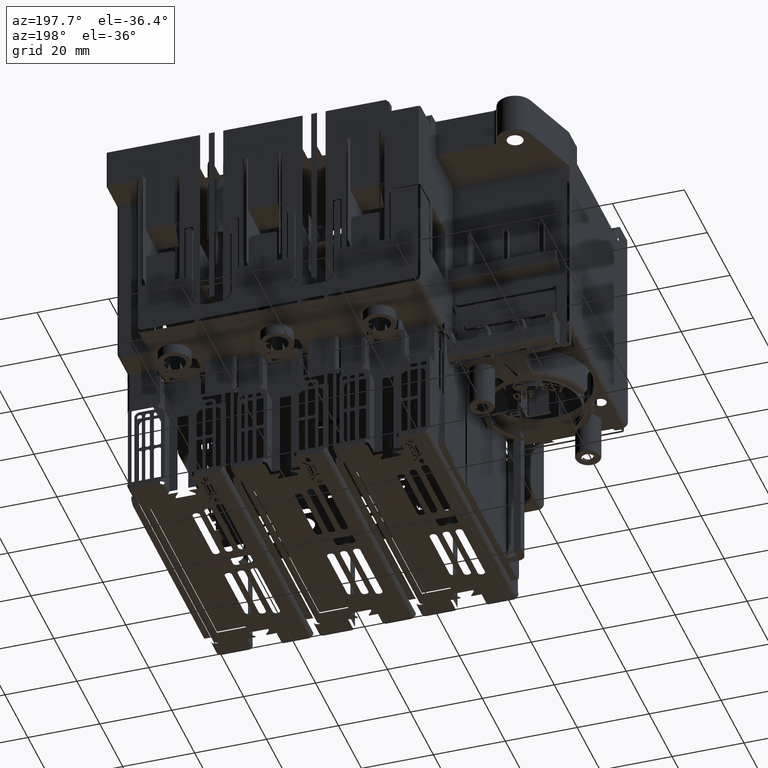
[diagram: clean part render]
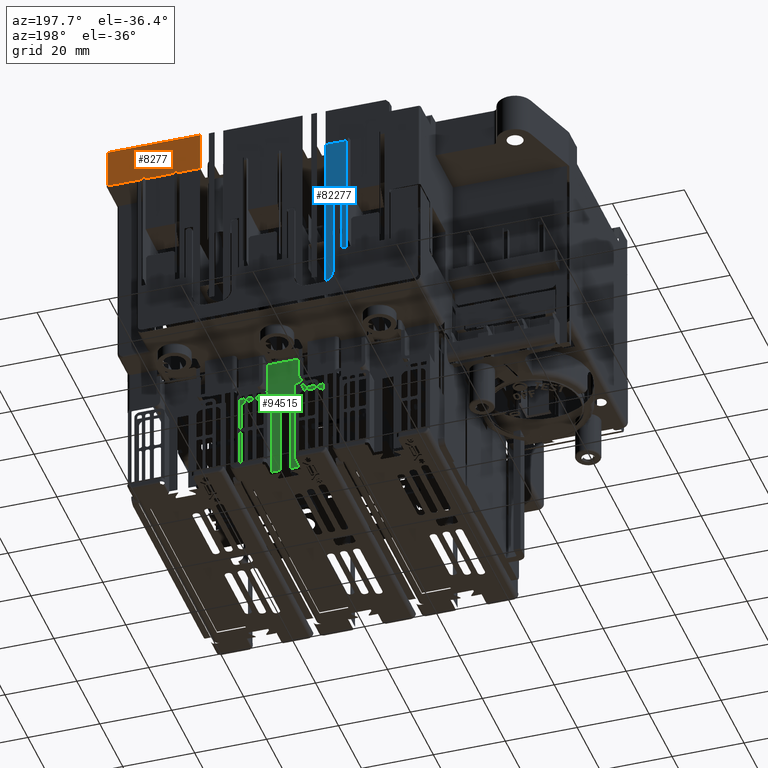
[diagram: same view with three faces highlighted in distinct colors, each labeled with its STEP entity id]
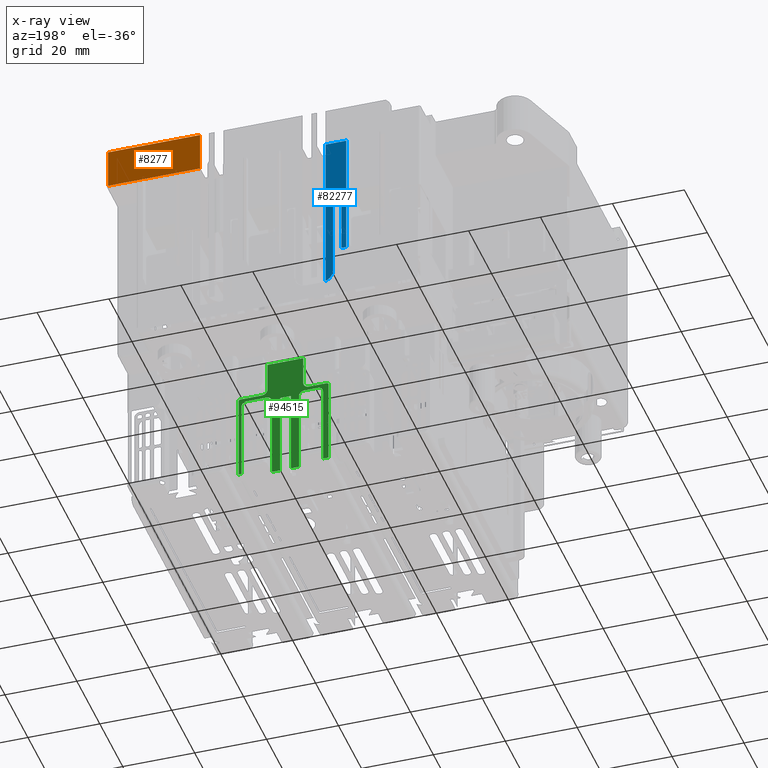
[diagram: x-ray of the same camera — body ghosted, the three highlighted faces saturated]
A machine part, auxiliary view with three faces highlighted in distinct colors.
The next image is the same camera in x-ray (body ghosted, the three faces saturated) — at least one of them is partly hidden behind the body in this view.
Their STEP definitions:

[orange] entity #8277 — the highlighted planar face has unit normal (0, 1, 0).
#1270=CARTESIAN_POINT('',(2.029893479755E2,4.687562894040E2,-2.550392864144E1));
#3011=DIRECTION('',(-1.E0,0.E0,0.E0));
#3012=VECTOR('',#3011,2.561392773700E1);
#3013=CARTESIAN_POINT('',(2.029893479755E2,4.687562894040E2,-1.450392864144E1));
#3014=LINE('',#3013,#3012);
#3015=DIRECTION('',(-1.188947499981E-5,0.E0,-9.999999999293E-1));
#3016=VECTOR('',#3015,1.100000000078E1);
#3017=CARTESIAN_POINT('',(1.773754202385E2,4.687562894040E2,-1.450392864144E1));
#3018=LINE('',#3017,#3016);
#3019=DIRECTION('',(1.E0,0.E0,0.E0));
#3020=VECTOR('',#3019,2.561405852123E1);
#3021=CARTESIAN_POINT('',(1.773752894543E2,4.687562894040E2,-2.550392864144E1));
#3022=LINE('',#3021,#3020);
#3023=DIRECTION('',(-2.402926342752E-13,0.E0,-1.E0));
#3024=VECTOR('',#3023,1.1E1);
#3025=CARTESIAN_POINT('',(2.029893479755E2,4.687562894040E2,-1.450392864144E1));
#3026=LINE('',#3025,#3024);
#5511=CARTESIAN_POINT('',(1.773752894543E2,4.687562894040E2,-2.550392864144E1));
#5513=VERTEX_POINT('',#5511);
#5844=CARTESIAN_POINT('',(1.773754202385E2,4.687562894040E2,-1.450392864144E1));
#5845=VERTEX_POINT('',#5844);
#6306=VERTEX_POINT('',#1270);
#6389=CARTESIAN_POINT('',(2.029893479755E2,4.687562894040E2,-1.450392864144E1));
#6391=VERTEX_POINT('',#6389);
#8264=CARTESIAN_POINT('',(1.901823036244E2,4.687562894040E2,-2.000392864144E1));
#8265=DIRECTION('',(0.E0,1.E0,0.E0));
#8266=DIRECTION('',(-1.E0,0.E0,0.E0));
#8267=AXIS2_PLACEMENT_3D('',#8264,#8265,#8266);
#8268=PLANE('',#8267);
#8270=ORIENTED_EDGE('',*,*,#8269,.F.);
#8271=ORIENTED_EDGE('',*,*,#7542,.T.);
#8273=ORIENTED_EDGE('',*,*,#8272,.T.);
#8274=ORIENTED_EDGE('',*,*,#6937,.T.);
#8275=EDGE_LOOP('',(#8270,#8271,#8273,#8274));
#8276=FACE_OUTER_BOUND('',#8275,.F.);
#8277=ADVANCED_FACE('',(#8276),#8268,.T.);
#6937=EDGE_CURVE('',#5513,#6306,#3022,.T.);
#7542=EDGE_CURVE('',#6391,#5845,#3014,.T.);
#8269=EDGE_CURVE('',#6391,#6306,#3026,.T.);
#8272=EDGE_CURVE('',#5845,#5513,#3018,.T.);

[blue] entity #82277 — the highlighted planar face has unit normal (0, 1, 0).
#82202=DIRECTION('',(0.E0,0.E0,-1.E0));
#82203=VECTOR('',#82202,3.500255343210E1);
#82204=CARTESIAN_POINT('',(1.367520832988E2,4.687713708287E2,
-2.550392386379E1));
#82205=LINE('',#82204,#82203);
#82206=DIRECTION('',(1.E0,0.E0,-1.553414213631E-14));
#82207=VECTOR('',#82206,1.372221387300E0);
#82208=CARTESIAN_POINT('',(1.367520832988E2,4.687713708287E2,
-6.050647729589E1));
#82209=LINE('',#82208,#82207);
#82210=DIRECTION('',(0.E0,0.E0,1.E0));
#82211=VECTOR('',#82210,1.619559352612E1);
#82212=CARTESIAN_POINT('',(1.381243046861E2,4.687713708287E2,
-6.050647729589E1));
#82213=LINE('',#82212,#82211);
#82214=DIRECTION('',(1.E0,0.E0,0.E0));
#82215=VECTOR('',#82214,2.316443917200E0);
#82216=CARTESIAN_POINT('',(1.381243046861E2,4.687713708287E2,
-4.431088376977E1));
#82217=LINE('',#82216,#82215);
#82218=DIRECTION('',(0.E0,0.E0,-1.E0));
#82219=VECTOR('',#82218,2.319890732171E1);
#82220=CARTESIAN_POINT('',(1.404407486033E2,4.687713708287E2,
-4.431088376977E1));
#82221=LINE('',#82220,#82219);
#82222=CARTESIAN_POINT('',(1.404407486033E2,4.687713708287E2,
-6.750979109148E1));
#82223=CARTESIAN_POINT('',(1.404392561788E2,4.687713708287E2,
-6.775123863570E1));
#82224=CARTESIAN_POINT('',(1.404957722215E2,4.687713708287E2,
-6.822391820596E1));
#82225=CARTESIAN_POINT('',(1.407712104646E2,4.687713708287E2,
-6.894455672858E1));
#82226=CARTESIAN_POINT('',(1.412008283767E2,4.687713708287E2,
-6.955001725308E1));
#82227=CARTESIAN_POINT('',(1.417849622002E2,4.687713708287E2,
-7.004827500868E1));
#82228=CARTESIAN_POINT('',(1.422347375138E2,4.687713708287E2,
-7.026581864584E1));
#82229=CARTESIAN_POINT('',(1.424782681820E2,4.687713708287E2,
-7.034953005506E1));
#82231=DIRECTION('',(0.E0,0.E0,1.E0));
#82232=VECTOR('',#82231,4.484560619127E1);
#82233=CARTESIAN_POINT('',(1.424782681820E2,4.687713708287E2,
-7.034953005506E1));
#82234=LINE('',#82233,#82232);
#82235=DIRECTION('',(-1.E0,0.E0,0.E0));
#82236=VECTOR('',#82235,5.726184883200E0);
#82237=CARTESIAN_POINT('',(1.424782681820E2,4.687713708287E2,
-2.550392386379E1));
#82238=LINE('',#82237,#82236);
#82239=CARTESIAN_POINT('',(1.367520832988E2,4.687713708287E2,
-2.550392386379E1));
#82240=CARTESIAN_POINT('',(1.367520832988E2,4.687713708287E2,
-6.050647729589E1));
#82241=VERTEX_POINT('',#82239);
#82242=VERTEX_POINT('',#82240);
#82243=CARTESIAN_POINT('',(1.381243046861E2,4.687713708287E2,
-6.050647729589E1));
#82244=VERTEX_POINT('',#82243);
#82245=CARTESIAN_POINT('',(1.381243046861E2,4.687713708287E2,
-4.431088376977E1));
#82246=VERTEX_POINT('',#82245);
#82247=CARTESIAN_POINT('',(1.404407486033E2,4.687713708287E2,
-4.431088376977E1));
#82248=VERTEX_POINT('',#82247);
#82249=CARTESIAN_POINT('',(1.404407486033E2,4.687713708287E2,
-6.750979109148E1));
#82250=VERTEX_POINT('',#82249);
#82251=VERTEX_POINT('',#82229);
#82252=CARTESIAN_POINT('',(1.424782681820E2,4.687713708287E2,
-2.550392386379E1));
#82253=VERTEX_POINT('',#82252);
#82254=CARTESIAN_POINT('',(1.396151757404E2,4.687713708287E2,
-4.792672695943E1));
#82255=DIRECTION('',(0.E0,1.E0,0.E0));
#82256=DIRECTION('',(-1.E0,0.E0,0.E0));
#82257=AXIS2_PLACEMENT_3D('',#82254,#82255,#82256);
#82258=PLANE('',#82257);
#82260=ORIENTED_EDGE('',*,*,#82259,.T.);
#82262=ORIENTED_EDGE('',*,*,#82261,.T.);
#82264=ORIENTED_EDGE('',*,*,#82263,.T.);
#82266=ORIENTED_EDGE('',*,*,#82265,.T.);
#82268=ORIENTED_EDGE('',*,*,#82267,.T.);
#82270=ORIENTED_EDGE('',*,*,#82269,.T.);
#82272=ORIENTED_EDGE('',*,*,#82271,.T.);
#82274=ORIENTED_EDGE('',*,*,#82273,.T.);
#82275=EDGE_LOOP('',(#82260,#82262,#82264,#82266,#82268,#82270,#82272,#82274));
#82276=FACE_OUTER_BOUND('',#82275,.F.);
#82277=ADVANCED_FACE('',(#82276),#82258,.T.);
#82230=B_SPLINE_CURVE_WITH_KNOTS('',3,(#82222,#82223,#82224,#82225,#82226,
#82227,#82228,#82229),.UNSPECIFIED.,.F.,.F.,(4,1,1,1,1,4),(0.E0,2.E-1,4.E-1,
6.E-1,8.E-1,1.E0),.UNSPECIFIED.);
#82259=EDGE_CURVE('',#82241,#82242,#82205,.T.);
#82261=EDGE_CURVE('',#82242,#82244,#82209,.T.);
#82263=EDGE_CURVE('',#82244,#82246,#82213,.T.);
#82265=EDGE_CURVE('',#82246,#82248,#82217,.T.);
#82267=EDGE_CURVE('',#82248,#82250,#82221,.T.);
#82269=EDGE_CURVE('',#82250,#82251,#82230,.T.);
#82271=EDGE_CURVE('',#82251,#82253,#82234,.T.);
#82273=EDGE_CURVE('',#82253,#82241,#82238,.T.);

[green] entity #94515 — the highlighted planar face has unit normal (0, 1, 0).
#91076=DIRECTION('',(1.E0,0.E0,0.E0));
#91077=VECTOR('',#91076,2.293751345400E0);
#91078=CARTESIAN_POINT('',(1.615389434214E2,4.488766985529E2,
-1.145039558470E2));
#91079=LINE('',#91078,#91077);
#91080=CARTESIAN_POINT('',(1.653326947668E2,4.488766985529E2,
-9.120395584697E1));
#91081=DIRECTION('',(0.E0,1.E0,0.E0));
#91082=DIRECTION('',(-1.E0,0.E0,6.660153909858E-12));
#91083=AXIS2_PLACEMENT_3D('',#91080,#91081,#91082);
#91085=DIRECTION('',(1.E0,0.E0,1.296583774278E-12));
#91086=VECTOR('',#91085,5.414352985575E0);
#91087=CARTESIAN_POINT('',(1.653326947668E2,4.488766985529E2,
-8.970395584697E1));
#91088=LINE('',#91087,#91086);
#91089=CARTESIAN_POINT('',(1.707470477524E2,4.488766985529E2,
-8.970395584696E1));
#91090=CARTESIAN_POINT('',(1.709145068947E2,4.488766985529E2,
-8.970666315860E1));
#91091=CARTESIAN_POINT('',(1.712281088915E2,4.488766985529E2,
-8.975640116418E1));
#91092=CARTESIAN_POINT('',(1.716477005599E2,4.488766985529E2,
-8.997480201457E1));
#91093=CARTESIAN_POINT('',(1.719770682912E2,4.488766985529E2,
-9.030452562174E1));
#91094=CARTESIAN_POINT('',(1.721948295157E2,4.488766985529E2,
-9.072387805421E1));
#91095=CARTESIAN_POINT('',(1.722443980982E2,4.488766985529E2,
-9.103689393122E1));
#91096=CARTESIAN_POINT('',(1.722470477668E2,4.488766985529E2,
-9.120395584703E1));
#91098=DIRECTION('',(0.E0,0.E0,-1.E0));
#91099=VECTOR('',#91098,2.209999999997E1);
#91100=CARTESIAN_POINT('',(1.722470477668E2,4.488766985529E2,
-9.120395584703E1));
#91101=LINE('',#91100,#91099);
#91102=DIRECTION('',(1.E0,0.E0,0.E0));
#91103=VECTOR('',#91102,8.E-1);
#91104=CARTESIAN_POINT('',(1.722470477668E2,4.488766985529E2,
-1.133039558470E2));
#91105=LINE('',#91104,#91103);
#91106=DIRECTION('',(0.E0,0.E0,1.E0));
#91107=VECTOR('',#91106,2.410000000008E1);
#91108=CARTESIAN_POINT('',(1.730470477668E2,4.488766985529E2,
-1.133039558470E2));
#91109=LINE('',#91108,#91107);
#91110=CARTESIAN_POINT('',(1.730470477668E2,4.488766985529E2,
-8.920395584692E1));
#91111=CARTESIAN_POINT('',(1.730444792206E2,4.488766985529E2,
-8.913153843215E1));
#91112=CARTESIAN_POINT('',(1.730183203037E2,4.488766985529E2,
-8.900059238887E1));
#91113=CARTESIAN_POINT('',(1.729087748567E2,4.488766985529E2,
-8.884247089944E1));
#91114=CARTESIAN_POINT('',(1.727506471318E2,4.488766985529E2,
-8.873275333547E1));
#91115=CARTESIAN_POINT('',(1.726195650737E2,4.488766985529E2,
-8.870654687392E1));
#91116=CARTESIAN_POINT('',(1.725470477668E2,4.488766985529E2,
-8.870395584696E1));
#91118=DIRECTION('',(-1.E0,0.E0,-8.360719524250E-13));
#91119=VECTOR('',#91118,5.999999999900E0);
#91120=CARTESIAN_POINT('',(1.725470477668E2,4.488766985529E2,
-8.870395584696E1));
#91121=LINE('',#91120,#91119);
#91122=CARTESIAN_POINT('',(1.665470477669E2,4.488766985529E2,
-8.720395584697E1));
#91123=DIRECTION('',(0.E0,1.E0,0.E0));
#91124=DIRECTION('',(0.E0,0.E0,-1.E0));
#91125=AXIS2_PLACEMENT_3D('',#91122,#91123,#91124);
#91127=DIRECTION('',(-1.E0,0.E0,0.E0));
#91128=VECTOR('',#91127,1.E1);
#91129=CARTESIAN_POINT('',(1.650470477669E2,4.488766985529E2,
-7.900395584731E1));
#91130=LINE('',#91129,#91128);
#91131=CARTESIAN_POINT('',(1.535470477669E2,4.488766985529E2,
-8.720395584697E1));
#91132=DIRECTION('',(0.E0,1.E0,0.E0));
#91133=DIRECTION('',(1.E0,0.E0,-6.650680006715E-12));
#91134=AXIS2_PLACEMENT_3D('',#91131,#91132,#91133);
#91136=DIRECTION('',(-1.E0,0.E0,3.979039320153E-13));
#91137=VECTOR('',#91136,5.000000000130E0);
#91138=CARTESIAN_POINT('',(1.535470477669E2,4.488766985529E2,
-8.870395584697E1));
#91139=LINE('',#91138,#91137);
#91140=CARTESIAN_POINT('',(1.485470477668E2,4.488766985529E2,
-8.870395584697E1));
#91141=CARTESIAN_POINT('',(1.484746303520E2,4.488766985529E2,
-8.870652439318E1));
#91142=CARTESIAN_POINT('',(1.483436843086E2,4.488766985529E2,
-8.873268331017E1));
#91143=CARTESIAN_POINT('',(1.481855628191E2,4.488766985529E2,
-8.884222875717E1));
#91144=CARTESIAN_POINT('',(1.480758452552E2,4.488766985529E2,
-8.900035648215E1));
#91145=CARTESIAN_POINT('',(1.480496387937E2,4.488766985529E2,
-8.913143854012E1));
#91146=CARTESIAN_POINT('',(1.480470477668E2,4.488766985529E2,
-8.920395584699E1));
#91148=DIRECTION('',(0.E0,0.E0,-1.E0));
#91149=VECTOR('',#91148,2.410000000001E1);
#91150=CARTESIAN_POINT('',(1.480470477668E2,4.488766985529E2,
-8.920395584699E1));
#91151=LINE('',#91150,#91149);
#91152=DIRECTION('',(1.E0,0.E0,0.E0));
#91153=VECTOR('',#91152,1.500000000600E0);
#91154=CARTESIAN_POINT('',(1.480470477668E2,4.488766985529E2,
-1.133039558470E2));
#91155=LINE('',#91154,#91153);
#91156=DIRECTION('',(0.E0,0.E0,1.E0));
#91157=VECTOR('',#91156,2.210000000003E1);
#91158=CARTESIAN_POINT('',(1.495470477674E2,4.488766985529E2,
-1.133039558470E2));
#91159=LINE('',#91158,#91157);
#91160=CARTESIAN_POINT('',(1.495470477674E2,4.488766985529E2,
-9.120395584697E1));
#91161=CARTESIAN_POINT('',(1.495497550805E2,4.488766985529E2,
-9.103649670591E1));
#91162=CARTESIAN_POINT('',(1.495994930885E2,4.488766985529E2,
-9.072289471162E1));
#91163=CARTESIAN_POINT('',(1.498178939404E2,4.488766985529E2,
-9.030330304713E1));
#91164=CARTESIAN_POINT('',(1.501476175472E2,4.488766985529E2,
-8.997393531921E1));
#91165=CARTESIAN_POINT('',(1.505669699779E2,4.488766985529E2,
-8.975617409732E1));
#91166=CARTESIAN_POINT('',(1.508799858529E2,4.488766985529E2,
-8.970660551545E1));
#91167=CARTESIAN_POINT('',(1.510470477675E2,4.488766985529E2,
-8.970395584697E1));
#91169=DIRECTION('',(1.E0,0.E0,-2.024086605398E-12));
#91170=VECTOR('',#91169,3.699999997500E0);
#91171=CARTESIAN_POINT('',(1.510470477675E2,4.488766985529E2,
-8.970395584697E1));
#91172=LINE('',#91171,#91170);
#91173=CARTESIAN_POINT('',(1.547470477668E2,4.488766985529E2,
-9.120395584698E1));
#91174=DIRECTION('',(0.E0,1.E0,0.E0));
#91175=DIRECTION('',(-2.400042831141E-9,0.E0,1.E0));
#91176=AXIS2_PLACEMENT_3D('',#91173,#91174,#91175);
#91178=DIRECTION('',(1.E0,2.480192269846E-14,0.E0));
#91179=VECTOR('',#91178,2.291895654700E0);
#91180=CARTESIAN_POINT('',(1.562470477667E2,4.488766985529E2,
-1.145039558470E2));
#91181=LINE('',#91180,#91179);
#91182=DIRECTION('',(0.E0,0.E0,1.E0));
#91183=VECTOR('',#91182,2.380000000003E1);
#91184=CARTESIAN_POINT('',(1.585389434214E2,4.488766985529E2,
-1.145039558470E2));
#91185=LINE('',#91184,#91183);
#91186=DIRECTION('',(1.E0,0.E0,0.E0));
#91187=VECTOR('',#91186,3.E0);
#91188=CARTESIAN_POINT('',(1.585389434214E2,4.488766985529E2,
-9.070395584697E1));
#91189=LINE('',#91188,#91187);
#91190=DIRECTION('',(0.E0,0.E0,-1.E0));
#91191=VECTOR('',#91190,2.380000000003E1);
#91192=CARTESIAN_POINT('',(1.615389434214E2,4.488766985529E2,
-9.070395584697E1));
#91193=LINE('',#91192,#91191);
#91198=DIRECTION('',(0.E0,0.E0,-1.E0));
#91199=VECTOR('',#91198,2.330000000004E1);
#91200=CARTESIAN_POINT('',(1.638326947668E2,4.488766985529E2,
-9.120395584696E1));
#91201=LINE('',#91200,#91199);
#91891=DIRECTION('',(2.860468180812E-12,0.E0,1.E0));
#91892=VECTOR('',#91891,2.330000000048E1);
#91893=CARTESIAN_POINT('',(1.562470477667E2,4.488766985529E2,
-1.145039558470E2));
#91894=LINE('',#91893,#91892);
#93587=DIRECTION('',(1.629049199133E-13,0.E0,-1.E0));
#93588=VECTOR('',#93587,8.199999999632E0);
#93589=CARTESIAN_POINT('',(1.650470477669E2,4.488766985529E2,
-7.900395584731E1));
#93590=LINE('',#93589,#93588);
#93599=DIRECTION('',(0.E0,0.E0,1.E0));
#93600=VECTOR('',#93599,8.199999999667E0);
#93601=CARTESIAN_POINT('',(1.550470477669E2,4.488766985529E2,
-8.720395584698E1));
#93602=LINE('',#93601,#93600);
#93677=CARTESIAN_POINT('',(1.547470477650E2,4.488766985529E2,
-8.970395584698E1));
#93679=VERTEX_POINT('',#93677);
#93681=CARTESIAN_POINT('',(1.615389434214E2,4.488766985529E2,
-1.145039558470E2));
#93682=CARTESIAN_POINT('',(1.638326947668E2,4.488766985529E2,
-1.145039558470E2));
#93683=VERTEX_POINT('',#93681);
#93684=VERTEX_POINT('',#93682);
#93685=CARTESIAN_POINT('',(1.653326947668E2,4.488766985529E2,
-8.970395584697E1));
#93686=CARTESIAN_POINT('',(1.707470477524E2,4.488766985529E2,
-8.970395584696E1));
#93687=VERTEX_POINT('',#93685);
#93688=VERTEX_POINT('',#93686);
#93689=VERTEX_POINT('',#91096);
#93690=CARTESIAN_POINT('',(1.722470477668E2,4.488766985529E2,
-1.133039558470E2));
#93691=VERTEX_POINT('',#93690);
#93692=CARTESIAN_POINT('',(1.730470477668E2,4.488766985529E2,
-1.133039558470E2));
#93693=VERTEX_POINT('',#93692);
#93694=CARTESIAN_POINT('',(1.730470477668E2,4.488766985529E2,
-8.920395584692E1));
#93695=VERTEX_POINT('',#93694);
#93696=VERTEX_POINT('',#91116);
#93697=CARTESIAN_POINT('',(1.665470477669E2,4.488766985529E2,
-8.870395584697E1));
#93698=VERTEX_POINT('',#93697);
#93699=CARTESIAN_POINT('',(1.650470477669E2,4.488766985529E2,
-7.900395584731E1));
#93700=CARTESIAN_POINT('',(1.550470477669E2,4.488766985529E2,
-7.900395584731E1));
#93701=VERTEX_POINT('',#93699);
#93702=VERTEX_POINT('',#93700);
#93703=CARTESIAN_POINT('',(1.535470477669E2,4.488766985529E2,
-8.870395584697E1));
#93704=CARTESIAN_POINT('',(1.485470477668E2,4.488766985529E2,
-8.870395584697E1));
#93705=VERTEX_POINT('',#93703);
#93706=VERTEX_POINT('',#93704);
#93707=VERTEX_POINT('',#91146);
#93708=CARTESIAN_POINT('',(1.480470477668E2,4.488766985529E2,
-1.133039558470E2));
#93709=VERTEX_POINT('',#93708);
#93710=CARTESIAN_POINT('',(1.495470477674E2,4.488766985529E2,
-1.133039558470E2));
#93711=VERTEX_POINT('',#93710);
#93712=CARTESIAN_POINT('',(1.495470477674E2,4.488766985529E2,
-9.120395584697E1));
#93713=VERTEX_POINT('',#93712);
#93714=VERTEX_POINT('',#91167);
#93715=CARTESIAN_POINT('',(1.562470477667E2,4.488766985529E2,
-1.145039558470E2));
#93716=CARTESIAN_POINT('',(1.585389434214E2,4.488766985529E2,
-1.145039558470E2));
#93717=VERTEX_POINT('',#93715);
#93718=VERTEX_POINT('',#93716);
#93719=CARTESIAN_POINT('',(1.585389434214E2,4.488766985529E2,
-9.070395584697E1));
#93720=VERTEX_POINT('',#93719);
#93721=CARTESIAN_POINT('',(1.615389434214E2,4.488766985529E2,
-9.070395584697E1));
#93722=VERTEX_POINT('',#93721);
#94395=CARTESIAN_POINT('',(1.562470477668E2,4.488766985529E2,
-9.120395584652E1));
#94397=VERTEX_POINT('',#94395);
#94399=CARTESIAN_POINT('',(1.638326947668E2,4.488766985529E2,
-9.120395584696E1));
#94400=VERTEX_POINT('',#94399);
#94401=CARTESIAN_POINT('',(1.650470477669E2,4.488766985529E2,
-8.720395584694E1));
#94402=VERTEX_POINT('',#94401);
#94403=CARTESIAN_POINT('',(1.550470477669E2,4.488766985529E2,
-8.720395584698E1));
#94404=VERTEX_POINT('',#94403);
#94453=CARTESIAN_POINT('',(1.605470477668E2,4.488766985529E2,
-9.675395584715E1));
#94454=DIRECTION('',(0.E0,1.E0,0.E0));
#94455=DIRECTION('',(1.E0,0.E0,0.E0));
#94456=AXIS2_PLACEMENT_3D('',#94453,#94454,#94455);
#94457=PLANE('',#94456);
#94459=ORIENTED_EDGE('',*,*,#94458,.T.);
#94461=ORIENTED_EDGE('',*,*,#94460,.F.);
#94463=ORIENTED_EDGE('',*,*,#94462,.T.);
#94465=ORIENTED_EDGE('',*,*,#94464,.T.);
#94467=ORIENTED_EDGE('',*,*,#94466,.T.);
#94469=ORIENTED_EDGE('',*,*,#94468,.T.);
#94471=ORIENTED_EDGE('',*,*,#94470,.T.);
#94473=ORIENTED_EDGE('',*,*,#94472,.T.);
#94475=ORIENTED_EDGE('',*,*,#94474,.T.);
#94477=ORIENTED_EDGE('',*,*,#94476,.T.);
#94479=ORIENTED_EDGE('',*,*,#94478,.T.);
#94481=ORIENTED_EDGE('',*,*,#94480,.F.);
#94483=ORIENTED_EDGE('',*,*,#94482,.T.);
#94485=ORIENTED_EDGE('',*,*,#94484,.F.);
#94487=ORIENTED_EDGE('',*,*,#94486,.T.);
#94489=ORIENTED_EDGE('',*,*,#94488,.T.);
#94491=ORIENTED_EDGE('',*,*,#94490,.T.);
#94493=ORIENTED_EDGE('',*,*,#94492,.T.);
#94495=ORIENTED_EDGE('',*,*,#94494,.T.);
#94497=ORIENTED_EDGE('',*,*,#94496,.T.);
#94499=ORIENTED_EDGE('',*,*,#94498,.T.);
#94501=ORIENTED_EDGE('',*,*,#94500,.T.);
#94502=ORIENTED_EDGE('',*,*,#94442,.T.);
#94504=ORIENTED_EDGE('',*,*,#94503,.F.);
#94506=ORIENTED_EDGE('',*,*,#94505,.T.);
#94508=ORIENTED_EDGE('',*,*,#94507,.T.);
#94510=ORIENTED_EDGE('',*,*,#94509,.T.);
#94512=ORIENTED_EDGE('',*,*,#94511,.T.);
#94513=EDGE_LOOP('',(#94459,#94461,#94463,#94465,#94467,#94469,#94471,#94473,
#94475,#94477,#94479,#94481,#94483,#94485,#94487,#94489,#94491,#94493,#94495,
#94497,#94499,#94501,#94502,#94504,#94506,#94508,#94510,#94512));
#94514=FACE_OUTER_BOUND('',#94513,.F.);
#94515=ADVANCED_FACE('',(#94514),#94457,.T.);
#91084=CIRCLE('',#91083,1.5E0);
#91097=B_SPLINE_CURVE_WITH_KNOTS('',3,(#91089,#91090,#91091,#91092,#91093,
#91094,#91095,#91096),.UNSPECIFIED.,.F.,.F.,(4,1,1,1,1,4),(0.E0,2.E-1,4.E-1,
6.E-1,8.E-1,1.E0),.UNSPECIFIED.);
#91117=B_SPLINE_CURVE_WITH_KNOTS('',3,(#91110,#91111,#91112,#91113,#91114,
#91115,#91116),.UNSPECIFIED.,.F.,.F.,(4,1,1,1,4),(0.E0,2.5E-1,5.E-1,7.5E-1,
1.E0),.UNSPECIFIED.);
#91126=CIRCLE('',#91125,1.5E0);
#91135=CIRCLE('',#91134,1.5E0);
#91147=B_SPLINE_CURVE_WITH_KNOTS('',3,(#91140,#91141,#91142,#91143,#91144,
#91145,#91146),.UNSPECIFIED.,.F.,.F.,(4,1,1,1,4),(0.E0,2.5E-1,5.E-1,7.5E-1,
1.E0),.UNSPECIFIED.);
#91168=B_SPLINE_CURVE_WITH_KNOTS('',3,(#91160,#91161,#91162,#91163,#91164,
#91165,#91166,#91167),.UNSPECIFIED.,.F.,.F.,(4,1,1,1,1,4),(0.E0,2.E-1,4.E-1,
6.E-1,8.E-1,1.E0),.UNSPECIFIED.);
#91177=CIRCLE('',#91176,1.5E0);
#94442=EDGE_CURVE('',#93679,#94397,#91177,.T.);
#94458=EDGE_CURVE('',#93683,#93684,#91079,.T.);
#94460=EDGE_CURVE('',#94400,#93684,#91201,.T.);
#94462=EDGE_CURVE('',#94400,#93687,#91084,.T.);
#94464=EDGE_CURVE('',#93687,#93688,#91088,.T.);
#94466=EDGE_CURVE('',#93688,#93689,#91097,.T.);
#94468=EDGE_CURVE('',#93689,#93691,#91101,.T.);
#94470=EDGE_CURVE('',#93691,#93693,#91105,.T.);
#94472=EDGE_CURVE('',#93693,#93695,#91109,.T.);
#94474=EDGE_CURVE('',#93695,#93696,#91117,.T.);
#94476=EDGE_CURVE('',#93696,#93698,#91121,.T.);
#94478=EDGE_CURVE('',#93698,#94402,#91126,.T.);
#94480=EDGE_CURVE('',#93701,#94402,#93590,.T.);
#94482=EDGE_CURVE('',#93701,#93702,#91130,.T.);
#94484=EDGE_CURVE('',#94404,#93702,#93602,.T.);
#94486=EDGE_CURVE('',#94404,#93705,#91135,.T.);
#94488=EDGE_CURVE('',#93705,#93706,#91139,.T.);
#94490=EDGE_CURVE('',#93706,#93707,#91147,.T.);
#94492=EDGE_CURVE('',#93707,#93709,#91151,.T.);
#94494=EDGE_CURVE('',#93709,#93711,#91155,.T.);
#94496=EDGE_CURVE('',#93711,#93713,#91159,.T.);
#94498=EDGE_CURVE('',#93713,#93714,#91168,.T.);
#94500=EDGE_CURVE('',#93714,#93679,#91172,.T.);
#94503=EDGE_CURVE('',#93717,#94397,#91894,.T.);
#94505=EDGE_CURVE('',#93717,#93718,#91181,.T.);
#94507=EDGE_CURVE('',#93718,#93720,#91185,.T.);
#94509=EDGE_CURVE('',#93720,#93722,#91189,.T.);
#94511=EDGE_CURVE('',#93722,#93683,#91193,.T.);